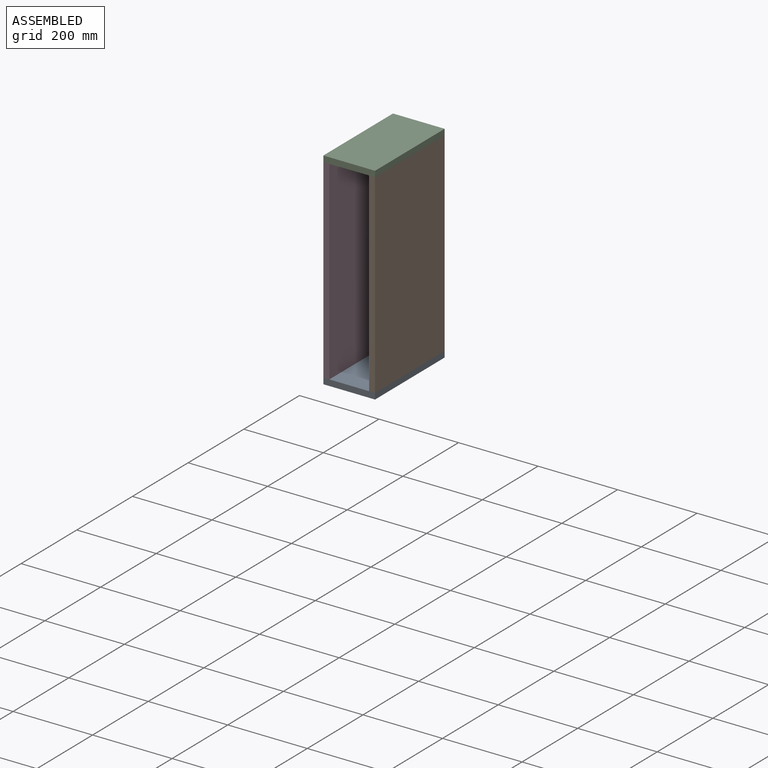
[diagram: assembled view]
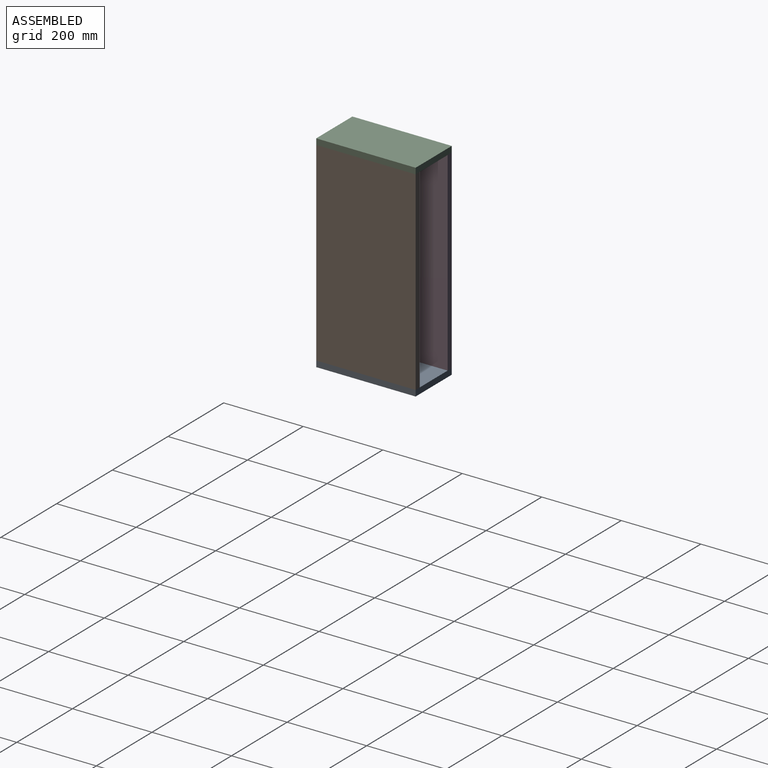
[diagram: assembled view, second angle]
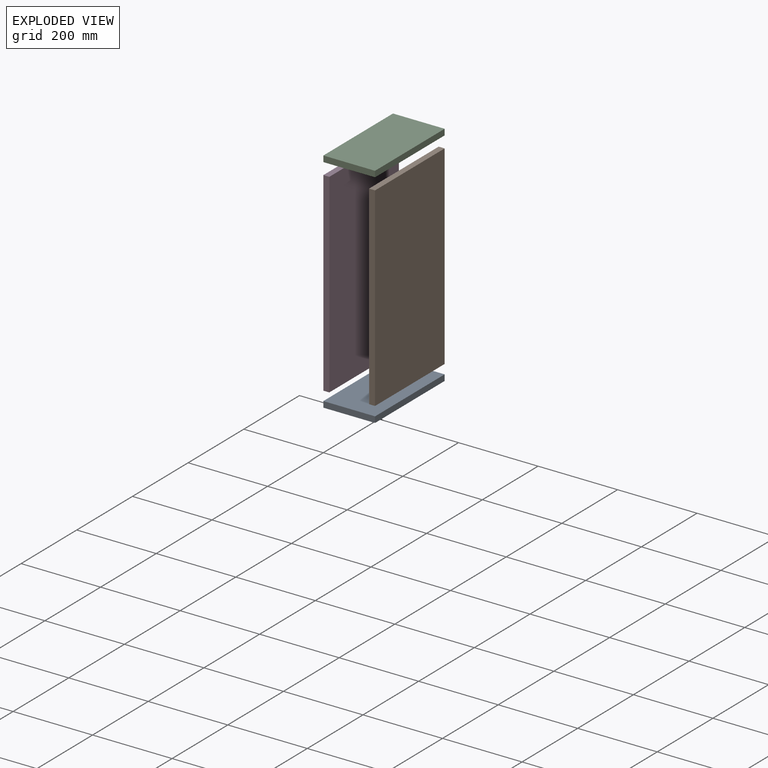
[diagram: exploded view]
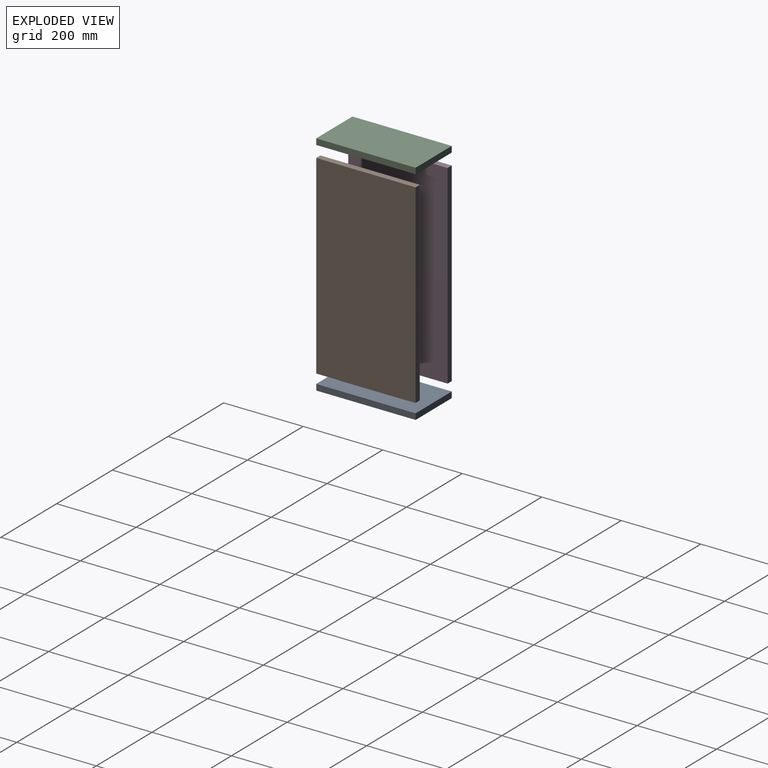
[diagram: exploded view, second angle]
ASSEMBLY  parts=4 mates=3
PART A: 6 faces, bbox 130x15x250 mm
  f0: plane 130x15mm, normal (0,0,1), area 1950mm2, adj f1,f3,f4,f5
  f1: plane 250x15mm, normal (-1,0,0), area 3750mm2, adj f0,f2,f4,f5
  f2: plane 130x15mm, normal (0,0,-1), area 1950mm2, adj f1,f3,f4,f5
  f3: plane 250x15mm, normal (1,0,0), area 3750mm2, adj f0,f2,f4,f5
  f4: plane 250x130mm, normal (0,-1,0), area 32500mm2, adj f0,f1,f2,f3
  f5: plane 250x130mm, normal (0,1,0), area 32500mm2, adj f0,f1,f2,f3
PART B: 6 faces, bbox 490x15x250 mm
  f0: plane 490x15mm, normal (0,0,1), area 7350mm2, adj f1,f3,f4,f5
  f1: plane 250x15mm, normal (-1,0,0), area 3750mm2, adj f0,f2,f4,f5
  f2: plane 490x15mm, normal (0,0,-1), area 7350mm2, adj f1,f3,f4,f5
  f3: plane 250x15mm, normal (1,0,0), area 3750mm2, adj f0,f2,f4,f5
  f4: plane 490x250mm, normal (0,-1,0), area 122500mm2, adj f0,f1,f2,f3
  f5: plane 490x250mm, normal (0,1,0), area 122500mm2, adj f0,f1,f2,f3
PART C: same geometry as A
PART D: same geometry as B
PLACE A rot(axis=(1,0,0),90deg) t=(-107.28,-168.68,-34.35)mm
PLACE B rot(axis=(0.58,0.58,-0.58),120deg) t=(-148.17,-580.4,596.48)mm
PLACE C rot(axis=(1,0,0),90deg) t=(-107.28,-168.68,470.65)mm
PLACE D rot(axis=(0.58,0.58,-0.58),120deg) t=(-263.17,-580.4,596.48)mm
MATE fastened B.f1 <-> C.f4  axis (0,0,1) through (-148.17,-305.63,455.65)mm
MATE fastened D.f1 <-> C.f4  axis (0,0,1) through (-278.17,-305.63,455.65)mm
MATE fastened A.f5 <-> D.f3  axis (0,0,1) through (-278.17,-305.63,-34.35)mm
